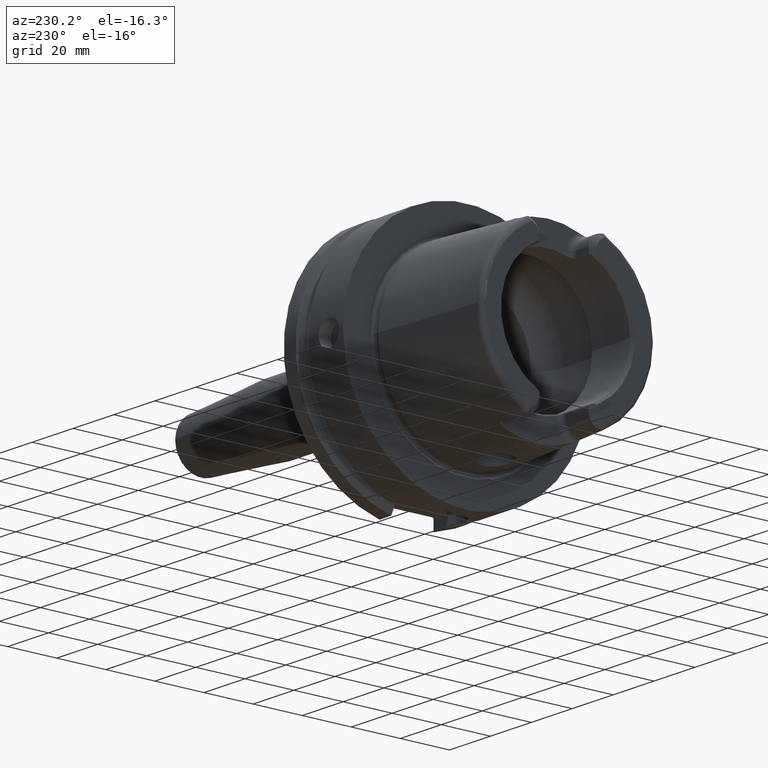
[diagram: clean part render]
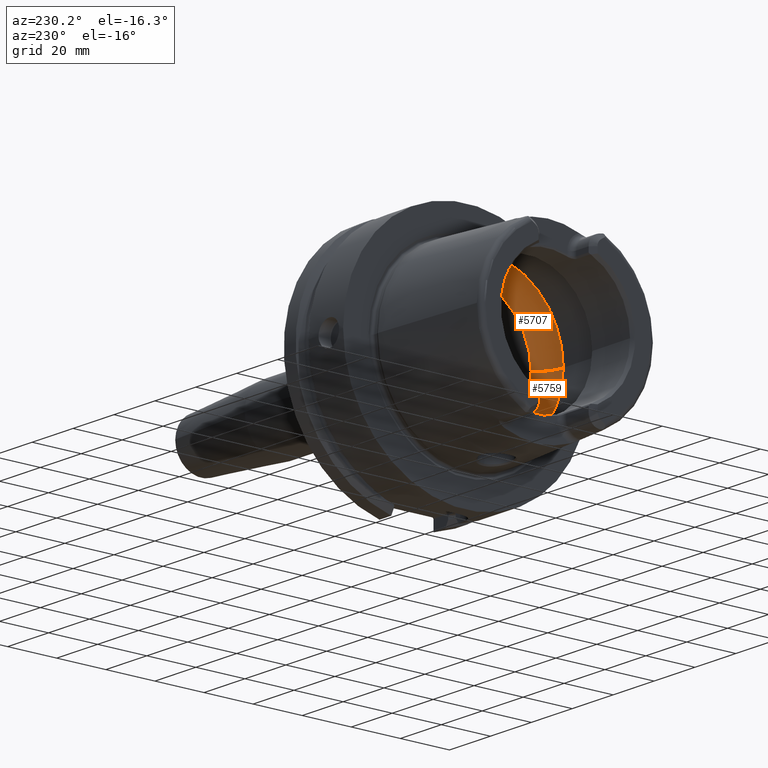
[diagram: same view with one multi-face feature highlighted, each face labeled with its STEP entity id]
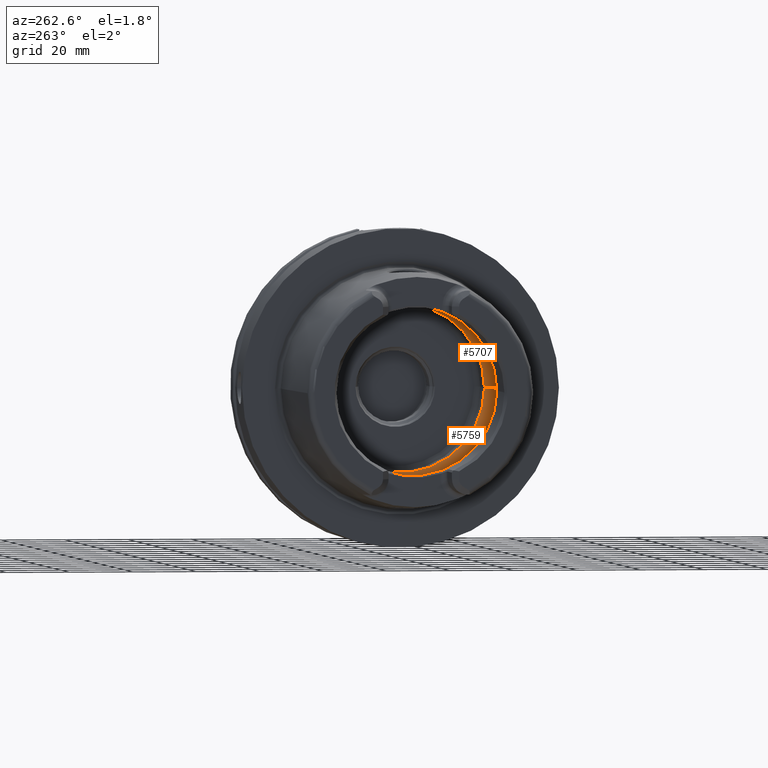
[diagram: same view with one multi-face feature highlighted, each face labeled with its STEP entity id]
A machine part, auxiliary view. The highlighted faces form ONE feature: a constant-radius fillet chain: 2 tangent blend faces with common blend radius 12 mm. The faces share edges in the B-rep.
A second angle (auxiliary view) of the same feature is appended — it is thin or edge-on in the first view.
Their STEP definitions:
[1] entity #5707 (Torus):
#2062=CARTESIAN_POINT('',(-9.E0,0.E0,3.147008518506E1));
#2063=CARTESIAN_POINT('',(-9.E0,2.141252053900E-1,3.147008518506E1));
#2064=CARTESIAN_POINT('',(-9.022897579641E0,6.436731047292E-1,
3.146736073712E1));
#2065=CARTESIAN_POINT('',(-9.127427069178E0,1.286248325661E0,3.145454181001E1));
#2066=CARTESIAN_POINT('',(-9.301031145484E0,1.913730198969E0,3.143197920586E1));
#2067=CARTESIAN_POINT('',(-9.539946842554E0,2.515068696018E0,3.139832080387E1));
#2068=CARTESIAN_POINT('',(-9.738529982809E0,2.891645116602E0,3.136752560017E1));
#2069=CARTESIAN_POINT('',(-9.846794344809E0,3.073185883624E0,3.134972932139E1));
#2071=CARTESIAN_POINT('',(-9.846794344809E0,-3.073185883624E0,
3.134972932139E1));
#2072=CARTESIAN_POINT('',(-9.738534471789E0,-2.891652643851E0,
3.136752486228E1));
#2073=CARTESIAN_POINT('',(-9.539946477828E0,-2.515078628379E0,
3.139832107651E1));
#2074=CARTESIAN_POINT('',(-9.300974895981E0,-1.913573808680E0,
3.143198691417E1));
#2075=CARTESIAN_POINT('',(-9.127396838585E0,-1.286102505522E0,
3.145454553504E1));
#2076=CARTESIAN_POINT('',(-9.022886850943E0,-6.435548392987E-1,
3.146736203025E1));
#2077=CARTESIAN_POINT('',(-9.E0,-2.140793620984E-1,3.147008518506E1));
#2078=CARTESIAN_POINT('',(-9.E0,0.E0,3.147008518506E1));
#2080=CARTESIAN_POINT('',(-1.E-1,0.E0,0.E0));
#2081=DIRECTION('',(1.E0,0.E0,0.E0));
#2082=DIRECTION('',(0.E0,1.E0,0.E0));
#2083=AXIS2_PLACEMENT_3D('',#2080,#2081,#2082);
#2109=CARTESIAN_POINT('',(-9.846794344809E0,0.E0,0.E0));
#2110=DIRECTION('',(1.E0,0.E0,0.E0));
#2111=DIRECTION('',(0.E0,1.E0,0.E0));
#2112=AXIS2_PLACEMENT_3D('',#2109,#2110,#2111);
#2114=CARTESIAN_POINT('',(-9.846794344809E0,0.E0,0.E0));
#2115=DIRECTION('',(1.E0,0.E0,0.E0));
#2116=DIRECTION('',(0.E0,-9.756145662299E-2,9.952295022665E-1));
#2117=AXIS2_PLACEMENT_3D('',#2114,#2115,#2116);
#2218=CARTESIAN_POINT('',(-9.846794344809E0,1.95E1,0.E0));
#2219=DIRECTION('',(0.E0,0.E0,1.E0));
#2220=DIRECTION('',(8.122328620674E-1,5.833333333333E-1,0.E0));
#2221=AXIS2_PLACEMENT_3D('',#2218,#2219,#2220);
#2228=CARTESIAN_POINT('',(-9.846794344809E0,-1.95E1,0.E0));
#2229=DIRECTION('',(0.E0,0.E0,-1.E0));
#2230=DIRECTION('',(8.122328620674E-1,-5.833333333333E-1,0.E0));
#2231=AXIS2_PLACEMENT_3D('',#2228,#2229,#2230);
#2733=CARTESIAN_POINT('',(-1.E-1,2.65E1,0.E0));
#2734=VERTEX_POINT('',#2733);
#2735=CARTESIAN_POINT('',(-9.846794344809E0,3.15E1,0.E0));
#2736=VERTEX_POINT('',#2735);
#2745=CARTESIAN_POINT('',(-1.E-1,-2.65E1,0.E0));
#2746=VERTEX_POINT('',#2745);
#2747=CARTESIAN_POINT('',(-9.846794344809E0,-3.15E1,0.E0));
#2748=VERTEX_POINT('',#2747);
#2914=VERTEX_POINT('',#2062);
#2915=VERTEX_POINT('',#2069);
#2916=VERTEX_POINT('',#2071);
#5688=CARTESIAN_POINT('',(-9.846794344809E0,0.E0,0.E0));
#5689=DIRECTION('',(1.E0,0.E0,0.E0));
#5690=DIRECTION('',(0.E0,-1.E0,0.E0));
#5691=AXIS2_PLACEMENT_3D('',#5688,#5689,#5690);
#5692=TOROIDAL_SURFACE('',#5691,1.95E1,1.2E1);
#5693=ORIENTED_EDGE('',*,*,#5665,.F.);
#5694=ORIENTED_EDGE('',*,*,#5391,.F.);
#5696=ORIENTED_EDGE('',*,*,#5695,.T.);
#5698=ORIENTED_EDGE('',*,*,#5697,.F.);
#5700=ORIENTED_EDGE('',*,*,#5699,.F.);
#5702=ORIENTED_EDGE('',*,*,#5701,.T.);
#5704=ORIENTED_EDGE('',*,*,#5703,.T.);
#5705=EDGE_LOOP('',(#5693,#5694,#5696,#5698,#5700,#5702,#5704));
#5706=FACE_OUTER_BOUND('',#5705,.F.);
#5707=ADVANCED_FACE('',(#5706),#5692,.F.);
#2070=B_SPLINE_CURVE_WITH_KNOTS('',3,(#2062,#2063,#2064,#2065,#2066,#2067,#2068,
#2069),.UNSPECIFIED.,.F.,.F.,(4,1,1,1,1,4),(0.E0,2.E-1,4.E-1,6.E-1,8.E-1,1.E0),
.UNSPECIFIED.);
#2079=B_SPLINE_CURVE_WITH_KNOTS('',3,(#2071,#2072,#2073,#2074,#2075,#2076,#2077,
#2078),.UNSPECIFIED.,.F.,.F.,(4,1,1,1,1,4),(0.E0,2.E-1,4.E-1,6.E-1,8.E-1,1.E0),
.UNSPECIFIED.);
#2084=CIRCLE('',#2083,2.65E1);
#2113=CIRCLE('',#2112,3.15E1);
#2118=CIRCLE('',#2117,3.15E1);
#2222=CIRCLE('',#2221,1.2E1);
#2232=CIRCLE('',#2231,1.2E1);
#5391=EDGE_CURVE('',#2916,#2914,#2079,.T.);
#5665=EDGE_CURVE('',#2914,#2915,#2070,.T.);
#5695=EDGE_CURVE('',#2916,#2748,#2118,.T.);
#5697=EDGE_CURVE('',#2746,#2748,#2232,.T.);
#5699=EDGE_CURVE('',#2734,#2746,#2084,.T.);
#5701=EDGE_CURVE('',#2734,#2736,#2222,.T.);
#5703=EDGE_CURVE('',#2736,#2915,#2113,.T.);
[2] entity #5759 (Torus):
#2191=CARTESIAN_POINT('',(-9.846794344809E0,0.E0,0.E0));
#2192=DIRECTION('',(-1.E0,0.E0,0.E0));
#2193=DIRECTION('',(0.E0,-9.756145662299E-2,-9.952295022665E-1));
#2194=AXIS2_PLACEMENT_3D('',#2191,#2192,#2193);
#2204=CARTESIAN_POINT('',(-9.846794344809E0,0.E0,0.E0));
#2205=DIRECTION('',(-1.E0,0.E0,0.E0));
#2206=DIRECTION('',(0.E0,1.E0,0.E0));
#2207=AXIS2_PLACEMENT_3D('',#2204,#2205,#2206);
#2209=CARTESIAN_POINT('',(-9.846794344809E0,3.073185883624E0,
-3.134972932139E1));
#2210=CARTESIAN_POINT('',(-9.738537060689E0,2.891656984993E0,
-3.136752443672E1));
#2211=CARTESIAN_POINT('',(-9.539962893717E0,2.515101251431E0,
-3.139831839188E1));
#2212=CARTESIAN_POINT('',(-9.301049424477E0,1.913783257480E0,
-3.143197673752E1));
#2213=CARTESIAN_POINT('',(-9.127438432729E0,1.286303015996E0,
-3.145454039544E1));
#2214=CARTESIAN_POINT('',(-9.022899506342E0,6.437010581526E-1,
-3.146736051152E1));
#2215=CARTESIAN_POINT('',(-9.E0,2.141354428497E-1,-3.147008518506E1));
#2216=CARTESIAN_POINT('',(-9.E0,0.E0,-3.147008518506E1));
#2218=CARTESIAN_POINT('',(-9.846794344809E0,1.95E1,0.E0));
#2219=DIRECTION('',(0.E0,0.E0,1.E0));
#2220=DIRECTION('',(8.122328620674E-1,5.833333333333E-1,0.E0));
#2221=AXIS2_PLACEMENT_3D('',#2218,#2219,#2220);
#2223=CARTESIAN_POINT('',(-1.E-1,0.E0,0.E0));
#2224=DIRECTION('',(-1.E0,0.E0,0.E0));
#2225=DIRECTION('',(0.E0,1.E0,0.E0));
#2226=AXIS2_PLACEMENT_3D('',#2223,#2224,#2225);
#2228=CARTESIAN_POINT('',(-9.846794344809E0,-1.95E1,0.E0));
#2229=DIRECTION('',(0.E0,0.E0,-1.E0));
#2230=DIRECTION('',(8.122328620674E-1,-5.833333333333E-1,0.E0));
#2231=AXIS2_PLACEMENT_3D('',#2228,#2229,#2230);
#2233=CARTESIAN_POINT('',(-9.E0,0.E0,-3.147008518506E1));
#2234=CARTESIAN_POINT('',(-9.E0,-2.140673862591E-1,-3.147008518506E1));
#2235=CARTESIAN_POINT('',(-9.022884475739E0,-6.435227636510E-1,
-3.146736230982E1));
#2236=CARTESIAN_POINT('',(-9.127385021154E0,-1.286046048393E0,
-3.145454700706E1));
#2237=CARTESIAN_POINT('',(-9.300956096822E0,-1.913519178713E0,
-3.143198945276E1));
#2238=CARTESIAN_POINT('',(-9.539929943663E0,-2.515045104426E0,
-3.139832356097E1));
#2239=CARTESIAN_POINT('',(-9.738527185842E0,-2.891640426569E0,
-3.136752605993E1));
#2240=CARTESIAN_POINT('',(-9.846794344809E0,-3.073185883624E0,
-3.134972932139E1));
#2733=CARTESIAN_POINT('',(-1.E-1,2.65E1,0.E0));
#2734=VERTEX_POINT('',#2733);
#2735=CARTESIAN_POINT('',(-9.846794344809E0,3.15E1,0.E0));
#2736=VERTEX_POINT('',#2735);
#2745=CARTESIAN_POINT('',(-1.E-1,-2.65E1,0.E0));
#2746=VERTEX_POINT('',#2745);
#2747=CARTESIAN_POINT('',(-9.846794344809E0,-3.15E1,0.E0));
#2748=VERTEX_POINT('',#2747);
#2918=VERTEX_POINT('',#2209);
#2919=VERTEX_POINT('',#2216);
#2920=VERTEX_POINT('',#2240);
#5744=CARTESIAN_POINT('',(-9.846794344809E0,0.E0,0.E0));
#5745=DIRECTION('',(1.E0,0.E0,0.E0));
#5746=DIRECTION('',(0.E0,-1.E0,0.E0));
#5747=AXIS2_PLACEMENT_3D('',#5744,#5745,#5746);
#5748=TOROIDAL_SURFACE('',#5747,1.95E1,1.2E1);
#5749=ORIENTED_EDGE('',*,*,#5682,.F.);
#5750=ORIENTED_EDGE('',*,*,#5739,.F.);
#5751=ORIENTED_EDGE('',*,*,#5701,.F.);
#5753=ORIENTED_EDGE('',*,*,#5752,.T.);
#5754=ORIENTED_EDGE('',*,*,#5697,.T.);
#5755=ORIENTED_EDGE('',*,*,#5733,.F.);
#5756=ORIENTED_EDGE('',*,*,#5406,.F.);
#5757=EDGE_LOOP('',(#5749,#5750,#5751,#5753,#5754,#5755,#5756));
#5758=FACE_OUTER_BOUND('',#5757,.F.);
#5759=ADVANCED_FACE('',(#5758),#5748,.F.);
#2195=CIRCLE('',#2194,3.15E1);
#2208=CIRCLE('',#2207,3.15E1);
#2217=B_SPLINE_CURVE_WITH_KNOTS('',3,(#2209,#2210,#2211,#2212,#2213,#2214,#2215,
#2216),.UNSPECIFIED.,.F.,.F.,(4,1,1,1,1,4),(0.E0,2.E-1,4.E-1,6.E-1,8.E-1,1.E0),
.UNSPECIFIED.);
#2222=CIRCLE('',#2221,1.2E1);
#2227=CIRCLE('',#2226,2.65E1);
#2232=CIRCLE('',#2231,1.2E1);
#2241=B_SPLINE_CURVE_WITH_KNOTS('',3,(#2233,#2234,#2235,#2236,#2237,#2238,#2239,
#2240),.UNSPECIFIED.,.F.,.F.,(4,1,1,1,1,4),(0.E0,2.E-1,4.E-1,6.E-1,8.E-1,1.E0),
.UNSPECIFIED.);
#5406=EDGE_CURVE('',#2919,#2920,#2241,.T.);
#5682=EDGE_CURVE('',#2918,#2919,#2217,.T.);
#5697=EDGE_CURVE('',#2746,#2748,#2232,.T.);
#5701=EDGE_CURVE('',#2734,#2736,#2222,.T.);
#5733=EDGE_CURVE('',#2920,#2748,#2195,.T.);
#5739=EDGE_CURVE('',#2736,#2918,#2208,.T.);
#5752=EDGE_CURVE('',#2734,#2746,#2227,.T.);